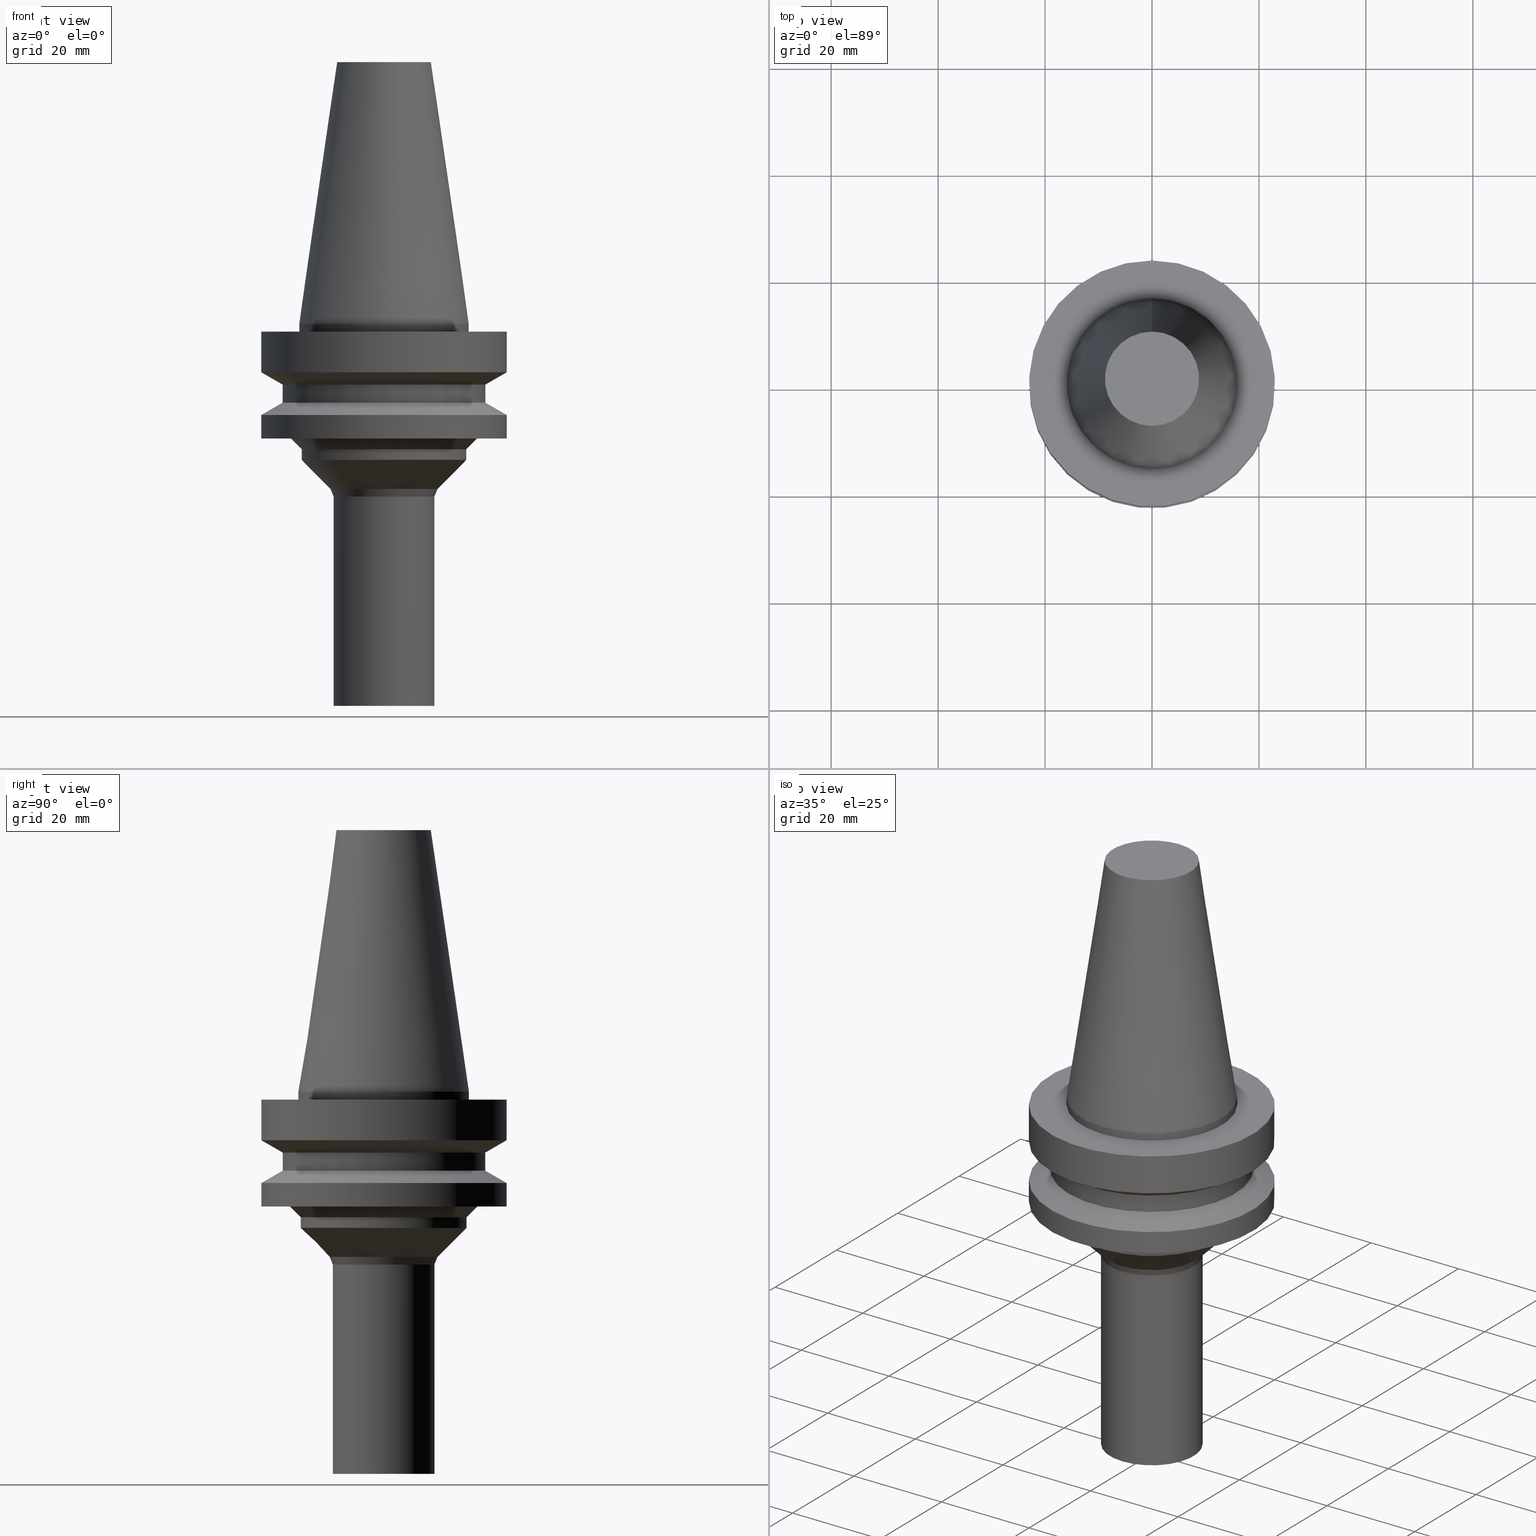
[diagram: canonical four-view strip — front | top / right | iso, engineering-drawing reading convention]
A machine part, canonical four-view strip (front | top / right | iso — engineering-drawing reading convention). The complete STEP part file that produces these views, byte-faithful:
ISO-10303-21;
HEADER;
FILE_DESCRIPTION((''),'1');
FILE_NAME('//Big_tech03/bigt/Translate/21_\X2\8F2A90ED7DDA\X0\-DXF/21_CK\X2\30DC30FC30EA30F330B030B730B930C630E0\X0\/01_CK\X2\30D930FC30B930DB30EB30C0\X0\ CK/BT/BT30/BT30-CK1-105.stp','2012-05-17T04:16:31',(''),(''),'Spatial Interop R18','Kubotek KeyCreator V8.5.1 (14335)',' ');
FILE_SCHEMA(('CONFIG_CONTROL_DESIGN'));
ENDSEC;
DATA;
#1=DESIGN_CONTEXT('',#27,'design');
#2=APPLICATION_PROTOCOL_DEFINITION('INTERNATIONAL STANDARD','config_control_design',1994,#27);
#3=PRODUCT_CATEGORY_RELATIONSHIP('NONE','NONE',#28,#29);
#4=DATE_AND_TIME(#30,#31);
#5=DATE_TIME_ROLE('creation_date');
#6=DATE_TIME_ROLE('classification_date');
#7=PERSON_AND_ORGANIZATION_ROLE('creator');
#8=PERSON_AND_ORGANIZATION_ROLE('design_supplier');
#9=PERSON_AND_ORGANIZATION_ROLE('classification_officer');
#10=PERSON_AND_ORGANIZATION_ROLE('design_owner');
#11=APPROVAL_PERSON_ORGANIZATION(#32,#33,#34);
#12=APPROVAL_DATE_TIME(#4,#33);
#13=CC_DESIGN_APPROVAL(#33,(#35,#36,#37));
#14=CC_DESIGN_DATE_AND_TIME_ASSIGNMENT(#4,#5,(#37));
#15=CC_DESIGN_DATE_AND_TIME_ASSIGNMENT(#4,#6,(#35));
#16=CC_DESIGN_PERSON_AND_ORGANIZATION_ASSIGNMENT(#32,#10,(#38));
#17=CC_DESIGN_PERSON_AND_ORGANIZATION_ASSIGNMENT(#32,#7,(#37));
#18=CC_DESIGN_PERSON_AND_ORGANIZATION_ASSIGNMENT(#32,#7,(#36));
#19=CC_DESIGN_PERSON_AND_ORGANIZATION_ASSIGNMENT(#32,#8,(#36));
#20=CC_DESIGN_SECURITY_CLASSIFICATION(#35,(#36));
#21=CC_DESIGN_PERSON_AND_ORGANIZATION_ASSIGNMENT(#32,#9,(#35));
#22=SHAPE_DEFINITION_REPRESENTATION(#39,#40);
#23= (GEOMETRIC_REPRESENTATION_CONTEXT(3)GLOBAL_UNCERTAINTY_ASSIGNED_CONTEXT((#43))GLOBAL_UNIT_ASSIGNED_CONTEXT((#45,#46,#47))REPRESENTATION_CONTEXT('NONE','WORKSPACE'));
#27=APPLICATION_CONTEXT('CONFIGURATION CONTROLLED 3D DESIGNS OF MECHANICAL PARTS AND ASSEMBLIES');
#28=PRODUCT_CATEGORY('part','NONE');
#29=PRODUCT_RELATED_PRODUCT_CATEGORY('detail',' ',(#38));
#30=CALENDAR_DATE(2012,17,4);
#31=LOCAL_TIME(13,16,31.0,#49);
#32=PERSON_AND_ORGANIZATION(#50,#51);
#33=APPROVAL(#52,'SOLID MODEL');
#34=APPROVAL_ROLE('APPROVED');
#35=SECURITY_CLASSIFICATION('','',#53);
#36=PRODUCT_DEFINITION_FORMATION_WITH_SPECIFIED_SOURCE(' ','NONE',#38,.NOT_KNOWN.);
#37=PRODUCT_DEFINITION('NONE','NONE',#36,#1);
#38=PRODUCT('1','1','PART-1-DESC',(#54));
#39=PRODUCT_DEFINITION_SHAPE('NONE','NONE',#37);
#40=ADVANCED_BREP_SHAPE_REPRESENTATION('1',(#55,#56),#23);
#43=UNCERTAINTY_MEASURE_WITH_UNIT(LENGTH_MEASURE(1.0E-006),#45,'','');
#45= (CONVERSION_BASED_UNIT('MILLIMETRE',#59)LENGTH_UNIT()NAMED_UNIT(#62));
#46= (NAMED_UNIT(#64)PLANE_ANGLE_UNIT()SI_UNIT($,.RADIAN.));
#47= (NAMED_UNIT(#64)SOLID_ANGLE_UNIT()SI_UNIT($,.STERADIAN.));
#49=COORDINATED_UNIVERSAL_TIME_OFFSET(9,0,.AHEAD.);
#50=PERSON('','UNSPECIFIED',$,$,$,$);
#51=ORGANIZATION('UNSPECIFIED','UNSPECIFIED','UNSPECIFIED');
#52=APPROVAL_STATUS('approved');
#53=SECURITY_CLASSIFICATION_LEVEL('unclassified');
#54=MECHANICAL_CONTEXT('',#27,'mechanical');
#55=MANIFOLD_SOLID_BREP('1',#70);
#56=AXIS2_PLACEMENT_3D('',#71,#72,#73);
#59=LENGTH_MEASURE_WITH_UNIT(LENGTH_MEASURE(1.0),#74);
#62=DIMENSIONAL_EXPONENTS(1.0,0.0,0.0,0.0,0.0,0.0,0.0);
#64=DIMENSIONAL_EXPONENTS(0.0,0.0,0.0,0.0,0.0,0.0,0.0);
#70=CLOSED_SHELL('',(#75,#76,#77,#78,#79,#80,#81,#82,#83,#84,#85,#86,#87,#88,#89,#90));
#71=CARTESIAN_POINT('',(0.0,0.0,0.0));
#72=DIRECTION('',(0.0,0.0,1.0));
#73=DIRECTION('',(1.0,0.0,0.0));
#74= (NAMED_UNIT(#62)LENGTH_UNIT()SI_UNIT(.MILLI.,.METRE.));
#75=ADVANCED_FACE('',(#92,#93),#94,.T.);
#76=ADVANCED_FACE('',(#95,#96),#97,.T.);
#77=ADVANCED_FACE('',(#98,#99),#100,.T.);
#78=ADVANCED_FACE('',(#101,#102),#103,.T.);
#79=ADVANCED_FACE('',(#104,#105),#106,.T.);
#80=ADVANCED_FACE('',(#107,#108),#109,.T.);
#81=ADVANCED_FACE('',(#110,#111),#112,.T.);
#82=ADVANCED_FACE('',(#113,#114),#115,.T.);
#83=ADVANCED_FACE('',(#116),#117,.T.);
#84=ADVANCED_FACE('',(#118,#119),#120,.T.);
#85=ADVANCED_FACE('',(#121,#122),#123,.T.);
#86=ADVANCED_FACE('',(#124,#125),#126,.T.);
#87=ADVANCED_FACE('',(#127,#128),#129,.T.);
#88=ADVANCED_FACE('',(#130,#131),#132,.T.);
#89=ADVANCED_FACE('',(#133),#134,.T.);
#90=ADVANCED_FACE('',(#135,#136),#137,.T.);
#92=FACE_BOUND('',#138,.T.);
#93=FACE_BOUND('',#139,.T.);
#94=CONICAL_SURFACE('',#140,21.0,1.04719746294071);
#95=FACE_BOUND('',#141,.T.);
#96=FACE_BOUND('',#142,.T.);
#97=CYLINDRICAL_SURFACE('',#143,23.0);
#98=FACE_BOUND('',#144,.T.);
#99=FACE_OUTER_BOUND('',#145,.T.);
#100=PLANE('',#146);
#101=FACE_BOUND('',#147,.T.);
#102=FACE_BOUND('',#148,.T.);
#103=CONICAL_SURFACE('',#149,16.5,0.785398163397448);
#104=FACE_BOUND('',#150,.T.);
#105=FACE_BOUND('',#151,.T.);
#106=CYLINDRICAL_SURFACE('',#152,15.5);
#107=FACE_BOUND('',#153,.T.);
#108=FACE_BOUND('',#154,.T.);
#109=CONICAL_SURFACE('',#155,12.792893174709,0.785398163397448);
#110=FACE_BOUND('',#156,.T.);
#111=FACE_BOUND('',#157,.T.);
#112=CONICAL_SURFACE('',#158,9.79289317470903,0.392699081698723);
#113=FACE_BOUND('',#159,.T.);
#114=FACE_BOUND('',#160,.T.);
#115=CYLINDRICAL_SURFACE('',#161,9.5);
#116=FACE_OUTER_BOUND('',#162,.T.);
#117=PLANE('',#163);
#118=FACE_BOUND('',#164,.T.);
#119=FACE_BOUND('',#165,.T.);
#120=CYLINDRICAL_SURFACE('',#166,19.0);
#121=FACE_BOUND('',#167,.T.);
#122=FACE_BOUND('',#168,.T.);
#123=CYLINDRICAL_SURFACE('',#169,15.9479189999998);
#124=FACE_OUTER_BOUND('',#170,.T.);
#125=FACE_BOUND('',#171,.T.);
#126=PLANE('',#172);
#127=FACE_BOUND('',#173,.T.);
#128=FACE_BOUND('',#174,.T.);
#129=CYLINDRICAL_SURFACE('',#175,23.0);
#130=FACE_BOUND('',#176,.T.);
#131=FACE_BOUND('',#177,.T.);
#132=CONICAL_SURFACE('',#178,21.0,1.04719739053406);
#133=FACE_OUTER_BOUND('',#179,.T.);
#134=PLANE('',#180);
#135=FACE_BOUND('',#181,.T.);
#136=FACE_BOUND('',#182,.T.);
#137=CONICAL_SURFACE('',#183,12.3822097314519,0.14481587303071);
#138=EDGE_LOOP('',(#184));
#139=EDGE_LOOP('',(#185));
#140=AXIS2_PLACEMENT_3D('',#186,#187,#188);
#141=EDGE_LOOP('',(#189));
#142=EDGE_LOOP('',(#190));
#143=AXIS2_PLACEMENT_3D('',#191,#192,#193);
#144=EDGE_LOOP('',(#194));
#145=EDGE_LOOP('',(#195));
#146=AXIS2_PLACEMENT_3D('',#196,#197,#198);
#147=EDGE_LOOP('',(#199));
#148=EDGE_LOOP('',(#200));
#149=AXIS2_PLACEMENT_3D('',#201,#202,#203);
#150=EDGE_LOOP('',(#204));
#151=EDGE_LOOP('',(#205));
#152=AXIS2_PLACEMENT_3D('',#206,#207,#208);
#153=EDGE_LOOP('',(#209));
#154=EDGE_LOOP('',(#210));
#155=AXIS2_PLACEMENT_3D('',#211,#212,#213);
#156=EDGE_LOOP('',(#214));
#157=EDGE_LOOP('',(#215));
#158=AXIS2_PLACEMENT_3D('',#216,#217,#218);
#159=EDGE_LOOP('',(#219));
#160=EDGE_LOOP('',(#220));
#161=AXIS2_PLACEMENT_3D('',#221,#222,#223);
#162=EDGE_LOOP('',(#224));
#163=AXIS2_PLACEMENT_3D('',#225,#226,#227);
#164=EDGE_LOOP('',(#228));
#165=EDGE_LOOP('',(#229));
#166=AXIS2_PLACEMENT_3D('',#230,#231,#232);
#167=EDGE_LOOP('',(#233));
#168=EDGE_LOOP('',(#234));
#169=AXIS2_PLACEMENT_3D('',#235,#236,#237);
#170=EDGE_LOOP('',(#238));
#171=EDGE_LOOP('',(#239));
#172=AXIS2_PLACEMENT_3D('',#240,#241,#242);
#173=EDGE_LOOP('',(#243));
#174=EDGE_LOOP('',(#244));
#175=AXIS2_PLACEMENT_3D('',#245,#246,#247);
#176=EDGE_LOOP('',(#248));
#177=EDGE_LOOP('',(#249));
#178=AXIS2_PLACEMENT_3D('',#250,#251,#252);
#179=EDGE_LOOP('',(#253));
#180=AXIS2_PLACEMENT_3D('',#254,#255,#256);
#181=EDGE_LOOP('',(#257));
#182=EDGE_LOOP('',(#258));
#183=AXIS2_PLACEMENT_3D('',#259,#260,#261);
#184=ORIENTED_EDGE('',*,*,#262,.F.);
#185=ORIENTED_EDGE('',*,*,#263,.T.);
#186=CARTESIAN_POINT('',(1.00698415131677E-015,2.01396830263355E-015,-16.4452992000285));
#187=DIRECTION('',(6.12323399573677E-017,1.22464679914735E-016,-1.0));
#188=DIRECTION('',(-1.23259516440783E-032,1.0,1.22464679914735E-016));
#189=ORIENTED_EDGE('',*,*,#264,.F.);
#190=ORIENTED_EDGE('',*,*,#262,.T.);
#191=CARTESIAN_POINT('',(1.21240033035241E-015,2.42480066070483E-015,-19.7999999868784));
#192=DIRECTION('',(-6.12323399573677E-017,-1.22464679914735E-016,1.0));
#193=DIRECTION('',(-1.23259516440783E-032,1.0,1.22464679914735E-016));
#194=ORIENTED_EDGE('',*,*,#265,.F.);
#195=ORIENTED_EDGE('',*,*,#264,.T.);
#196=CARTESIAN_POINT('',(1.34711147906209E-015,20.25,-22.0));
#197=DIRECTION('',(6.12323399573677E-017,1.22464679914735E-016,-1.0));
#198=DIRECTION('',(-1.23259516440783E-032,1.0,1.22464679914735E-016));
#199=ORIENTED_EDGE('',*,*,#266,.F.);
#200=ORIENTED_EDGE('',*,*,#265,.T.);
#201=CARTESIAN_POINT('',(1.40834381901946E-015,2.81668763803891E-015,-23.0));
#202=DIRECTION('',(-6.12323399573677E-017,-1.22464679914735E-016,1.0));
#203=DIRECTION('',(-1.23259516440783E-032,1.0,1.22464679914735E-016));
#204=ORIENTED_EDGE('',*,*,#267,.F.);
#205=ORIENTED_EDGE('',*,*,#266,.T.);
#206=CARTESIAN_POINT('',(1.53080849893419E-015,3.06161699786838E-015,-25.0));
#207=DIRECTION('',(-6.12323399573677E-017,-1.22464679914735E-016,1.0));
#208=DIRECTION('',(-1.23259516440783E-032,1.0,1.22464679914735E-016));
#209=ORIENTED_EDGE('',*,*,#268,.F.);
#210=ORIENTED_EDGE('',*,*,#267,.T.);
#211=CARTESIAN_POINT('',(1.75780332431868E-015,3.51560664863736E-015,-28.7071068252909));
#212=DIRECTION('',(-6.12323399573677E-017,-1.22464679914735E-016,1.0));
#213=DIRECTION('',(-1.23259516440783E-032,1.0,1.22464679914735E-016));
#214=ORIENTED_EDGE('',*,*,#269,.F.);
#215=ORIENTED_EDGE('',*,*,#268,.T.);
#216=CARTESIAN_POINT('',(1.96686360603772E-015,3.93372721207544E-015,-32.1213203252909));
#217=DIRECTION('',(-6.12323399573677E-017,-1.22464679914735E-016,1.0));
#218=DIRECTION('',(-1.23259516440783E-032,1.0,1.22464679914735E-016));
#219=ORIENTED_EDGE('',*,*,#270,.F.);
#220=ORIENTED_EDGE('',*,*,#269,.T.);
#221=CARTESIAN_POINT('',(3.20944493963005E-015,6.4188898792601E-015,-52.4142135));
#222=DIRECTION('',(-6.12323399573677E-017,-1.22464679914735E-016,1.0));
#223=DIRECTION('',(-1.23259516440783E-032,1.0,1.22464679914735E-016));
#224=ORIENTED_EDGE('',*,*,#270,.T.);
#225=CARTESIAN_POINT('',(4.40872847693047E-015,4.75000000000001,-72.0));
#226=DIRECTION('',(6.12323399573677E-017,1.22464679914735E-016,-1.0));
#227=DIRECTION('',(-1.23259516440783E-032,1.0,1.22464679914735E-016));
#228=ORIENTED_EDGE('',*,*,#263,.F.);
#229=ORIENTED_EDGE('',*,*,#271,.T.);
#230=CARTESIAN_POINT('',(8.32759823468329E-016,1.66551964693666E-015,-13.600000000786));
#231=DIRECTION('',(-6.12323399573677E-017,-1.22464679914735E-016,1.0));
#232=DIRECTION('',(-1.23259516440783E-032,1.0,1.22464679914735E-016));
#233=ORIENTED_EDGE('',*,*,#272,.F.);
#234=ORIENTED_EDGE('',*,*,#273,.T.);
#235=CARTESIAN_POINT('',(7.65404249467096E-017,1.53080849893419E-016,-1.25));
#236=DIRECTION('',(-6.12323399573677E-017,-1.22464679914735E-016,1.0));
#237=DIRECTION('',(-1.23259516440783E-032,1.0,1.22464679914735E-016));
#238=ORIENTED_EDGE('',*,*,#274,.F.);
#239=ORIENTED_EDGE('',*,*,#272,.T.);
#240=CARTESIAN_POINT('',(1.22464679914735E-016,19.4739594999998,-2.0));
#241=DIRECTION('',(-6.12323399573677E-017,-1.22464679914735E-016,1.0));
#242=DIRECTION('',(1.23259516440783E-032,-1.0,-1.22464679914735E-016));
#243=ORIENTED_EDGE('',*,*,#275,.F.);
#244=ORIENTED_EDGE('',*,*,#274,.T.);
#245=CARTESIAN_POINT('',(3.55147560781314E-016,7.10295121562628E-016,-5.79999982082314));
#246=DIRECTION('',(-6.12323399573677E-017,-1.22464679914735E-016,1.0));
#247=DIRECTION('',(-1.23259516440783E-032,1.0,1.22464679914735E-016));
#248=ORIENTED_EDGE('',*,*,#271,.F.);
#249=ORIENTED_EDGE('',*,*,#275,.T.);
#250=CARTESIAN_POINT('',(6.58535483796871E-016,1.31707096759374E-015,-10.754700608459));
#251=DIRECTION('',(-6.12323399573677E-017,-1.22464679914735E-016,1.0));
#252=DIRECTION('',(-1.23259516440783E-032,1.0,1.22464679914735E-016));
#253=ORIENTED_EDGE('',*,*,#276,.F.);
#254=CARTESIAN_POINT('',(-2.9636452539366E-015,4.40825023145189,48.4));
#255=DIRECTION('',(-6.12323399573677E-017,-1.22464679914735E-016,1.0));
#256=DIRECTION('',(1.23259516440783E-032,-1.0,-1.22464679914735E-016));
#257=ORIENTED_EDGE('',*,*,#273,.F.);
#258=ORIENTED_EDGE('',*,*,#276,.T.);
#259=CARTESIAN_POINT('',(-1.46651454197896E-015,-2.93302908395791E-015,23.95));
#260=DIRECTION('',(6.12323399573677E-017,1.22464679914735E-016,-1.0));
#261=DIRECTION('',(-1.23259516440783E-032,1.0,1.22464679914735E-016));
#262=EDGE_CURVE('',#277,#277,#278,.T.);
#263=EDGE_CURVE('',#279,#279,#280,.T.);
#264=EDGE_CURVE('',#281,#281,#282,.T.);
#265=EDGE_CURVE('',#283,#283,#284,.T.);
#266=EDGE_CURVE('',#285,#285,#286,.T.);
#267=EDGE_CURVE('',#287,#287,#288,.T.);
#268=EDGE_CURVE('',#289,#289,#290,.T.);
#269=EDGE_CURVE('',#291,#291,#292,.T.);
#270=EDGE_CURVE('',#293,#293,#294,.T.);
#271=EDGE_CURVE('',#295,#295,#296,.T.);
#272=EDGE_CURVE('',#297,#297,#298,.T.);
#273=EDGE_CURVE('',#299,#299,#300,.T.);
#274=EDGE_CURVE('',#301,#301,#302,.T.);
#275=EDGE_CURVE('',#303,#303,#304,.T.);
#276=EDGE_CURVE('',#305,#305,#306,.T.);
#277=VERTEX_POINT('',#307);
#278=CIRCLE('',#308,23.0);
#279=VERTEX_POINT('',#309);
#280=CIRCLE('',#310,19.0);
#281=VERTEX_POINT('',#311);
#282=CIRCLE('',#312,23.0);
#283=VERTEX_POINT('',#313);
#284=CIRCLE('',#314,17.5);
#285=VERTEX_POINT('',#315);
#286=CIRCLE('',#316,15.5);
#287=VERTEX_POINT('',#317);
#288=CIRCLE('',#318,15.5);
#289=VERTEX_POINT('',#319);
#290=CIRCLE('',#320,10.0857863494181);
#291=VERTEX_POINT('',#321);
#292=CIRCLE('',#322,9.5);
#293=VERTEX_POINT('',#323);
#294=CIRCLE('',#324,9.5);
#295=VERTEX_POINT('',#325);
#296=CIRCLE('',#326,19.0);
#297=VERTEX_POINT('',#327);
#298=CIRCLE('',#328,15.9479189999996);
#299=VERTEX_POINT('',#329);
#300=CIRCLE('',#330,15.947919);
#301=VERTEX_POINT('',#331);
#302=CIRCLE('',#332,23.0);
#303=VERTEX_POINT('',#333);
#304=CIRCLE('',#334,23.0);
#305=VERTEX_POINT('',#335);
#306=CIRCLE('',#336,8.8165004629038);
#307=CARTESIAN_POINT('',(1.07768918164274E-015,23.0,-17.5999999737568));
#308=AXIS2_PLACEMENT_3D('',#337,#338,#339);
#309=CARTESIAN_POINT('',(9.36279120990808E-016,19.0,-15.2905984263003));
#310=AXIS2_PLACEMENT_3D('',#340,#341,#342);
#311=CARTESIAN_POINT('',(1.34711147906209E-015,23.0,-22.0));
#312=AXIS2_PLACEMENT_3D('',#343,#344,#345);
#313=CARTESIAN_POINT('',(1.34711147906209E-015,17.5,-22.0));
#314=AXIS2_PLACEMENT_3D('',#346,#347,#348);
#315=CARTESIAN_POINT('',(1.46957615897682E-015,15.5,-24.0));
#316=AXIS2_PLACEMENT_3D('',#349,#350,#351);
#317=CARTESIAN_POINT('',(1.59204083889156E-015,15.5,-25.9999999999999));
#318=AXIS2_PLACEMENT_3D('',#352,#353,#354);
#319=CARTESIAN_POINT('',(1.92356580974581E-015,10.0857863494181,-31.4142136505819));
#320=AXIS2_PLACEMENT_3D('',#355,#356,#357);
#321=CARTESIAN_POINT('',(2.01016140232963E-015,9.5,-32.828427));
#322=AXIS2_PLACEMENT_3D('',#358,#359,#360);
#323=CARTESIAN_POINT('',(4.40872847693047E-015,9.50000000000001,-72.0));
#324=AXIS2_PLACEMENT_3D('',#361,#362,#363);
#325=CARTESIAN_POINT('',(7.29240525945849E-016,19.0,-11.9094015752717));
#326=AXIS2_PLACEMENT_3D('',#364,#365,#366);
#327=CARTESIAN_POINT('',(1.22464679914735E-016,15.9479189999996,-2.0));
#328=AXIS2_PLACEMENT_3D('',#367,#368,#369);
#329=CARTESIAN_POINT('',(3.06161699786833E-017,15.947919,-0.499999999999992));
#330=AXIS2_PLACEMENT_3D('',#370,#371,#372);
#331=CARTESIAN_POINT('',(1.22464679914735E-016,23.0,-2.0));
#332=AXIS2_PLACEMENT_3D('',#373,#374,#375);
#333=CARTESIAN_POINT('',(5.87830441647893E-016,23.0,-9.59999964164628));
#334=AXIS2_PLACEMENT_3D('',#376,#377,#378);
#335=CARTESIAN_POINT('',(-2.9636452539366E-015,8.81650046290379,48.4));
#336=AXIS2_PLACEMENT_3D('',#379,#380,#381);
#337=CARTESIAN_POINT('',(1.07768918164274E-015,2.15537836328548E-015,-17.5999999737568));
#338=DIRECTION('',(6.12323399573677E-017,1.22464679914735E-016,-1.0));
#339=DIRECTION('',(-1.23259516440783E-032,1.0,1.22464679914735E-016));
#340=CARTESIAN_POINT('',(9.36279120990809E-016,1.87255824198162E-015,-15.2905984263003));
#341=DIRECTION('',(6.12323399573677E-017,1.22464679914735E-016,-1.0));
#342=DIRECTION('',(-1.23259516440783E-032,1.0,1.22464679914735E-016));
#343=CARTESIAN_POINT('',(1.34711147906209E-015,2.69422295812418E-015,-22.0));
#344=DIRECTION('',(6.12323399573677E-017,1.22464679914735E-016,-1.0));
#345=DIRECTION('',(-1.23259516440783E-032,1.0,1.22464679914735E-016));
#346=CARTESIAN_POINT('',(1.34711147906209E-015,2.69422295812418E-015,-22.0));
#347=DIRECTION('',(6.12323399573677E-017,1.22464679914735E-016,-1.0));
#348=DIRECTION('',(-1.23259516440783E-032,1.0,1.22464679914735E-016));
#349=CARTESIAN_POINT('',(1.46957615897682E-015,2.93915231795365E-015,-24.0));
#350=DIRECTION('',(6.12323399573677E-017,1.22464679914735E-016,-1.0));
#351=DIRECTION('',(-1.23259516440783E-032,1.0,1.22464679914735E-016));
#352=CARTESIAN_POINT('',(1.59204083889156E-015,3.18408167778311E-015,-25.9999999999999));
#353=DIRECTION('',(6.12323399573677E-017,1.22464679914735E-016,-1.0));
#354=DIRECTION('',(-1.23259516440783E-032,1.0,1.22464679914735E-016));
#355=CARTESIAN_POINT('',(1.92356580974581E-015,3.84713161949162E-015,-31.4142136505819));
#356=DIRECTION('',(6.12323399573677E-017,1.22464679914735E-016,-1.0));
#357=DIRECTION('',(-1.23259516440783E-032,1.0,1.22464679914735E-016));
#358=CARTESIAN_POINT('',(2.01016140232963E-015,4.02032280465925E-015,-32.828427));
#359=DIRECTION('',(6.12323399573677E-017,1.22464679914735E-016,-1.0));
#360=DIRECTION('',(-1.23259516440783E-032,1.0,1.22464679914735E-016));
#361=CARTESIAN_POINT('',(4.40872847693047E-015,8.81745695386094E-015,-72.0));
#362=DIRECTION('',(6.12323399573677E-017,1.22464679914735E-016,-1.0));
#363=DIRECTION('',(-1.23259516440783E-032,1.0,1.22464679914735E-016));
#364=CARTESIAN_POINT('',(7.29240525945849E-016,1.4584810518917E-015,-11.9094015752717));
#365=DIRECTION('',(6.12323399573677E-017,1.22464679914735E-016,-1.0));
#366=DIRECTION('',(-1.23259516440783E-032,1.0,1.22464679914735E-016));
#367=CARTESIAN_POINT('',(1.22464679914735E-016,2.44929359829471E-016,-2.0));
#368=DIRECTION('',(6.12323399573677E-017,1.22464679914735E-016,-1.0));
#369=DIRECTION('',(-1.23259516440783E-032,1.0,1.22464679914735E-016));
#370=CARTESIAN_POINT('',(3.06161699786834E-017,6.12323399573668E-017,-0.499999999999993));
#371=DIRECTION('',(6.12323399573677E-017,1.22464679914735E-016,-1.0));
#372=DIRECTION('',(-1.23259516440783E-032,1.0,1.22464679914735E-016));
#373=CARTESIAN_POINT('',(1.22464679914735E-016,2.44929359829471E-016,-2.0));
#374=DIRECTION('',(6.12323399573677E-017,1.22464679914735E-016,-1.0));
#375=DIRECTION('',(-1.23259516440783E-032,1.0,1.22464679914735E-016));
#376=CARTESIAN_POINT('',(5.87830441647893E-016,1.17566088329579E-015,-9.59999964164628));
#377=DIRECTION('',(6.12323399573677E-017,1.22464679914735E-016,-1.0));
#378=DIRECTION('',(-1.23259516440783E-032,1.0,1.22464679914735E-016));
#379=CARTESIAN_POINT('',(-2.9636452539366E-015,-5.92729050787319E-015,48.4));
#380=DIRECTION('',(6.12323399573677E-017,1.22464679914735E-016,-1.0));
#381=DIRECTION('',(-1.23259516440783E-032,1.0,1.22464679914735E-016));
ENDSEC;
END-ISO-10303-21;
